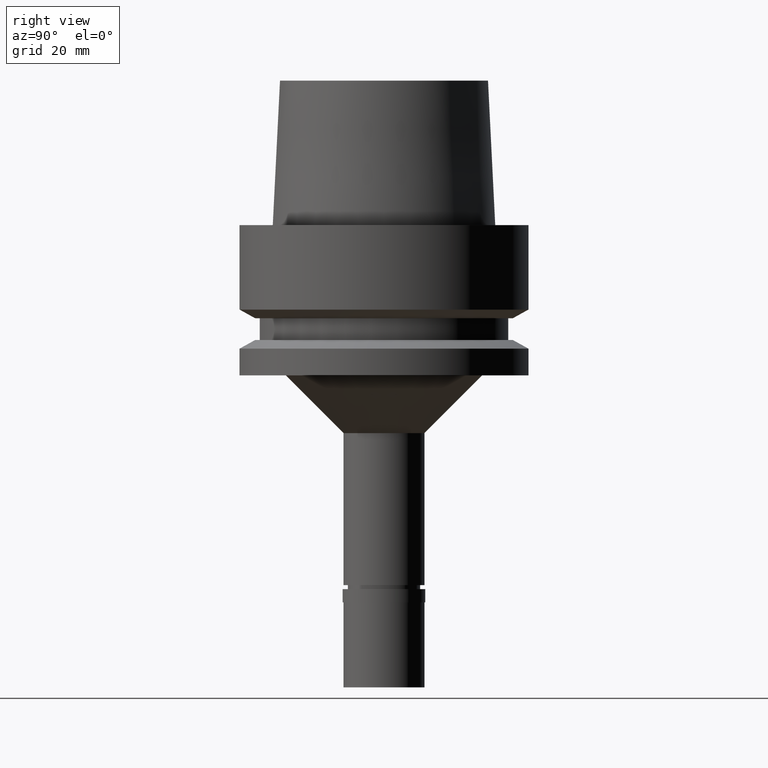
[diagram: clean part render]
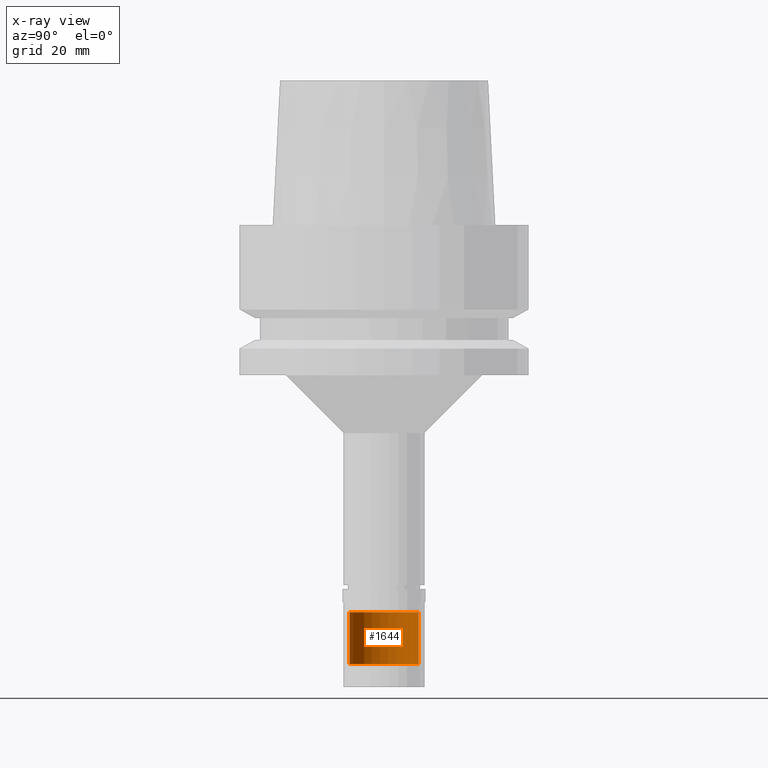
[diagram: x-ray — body ghosted, one internal face saturated and labeled with its STEP entity id]
A machine part, right view, then the same camera in x-ray: the body is ghosted and one INTERNAL B-rep face — a face not visible from any outside direction — is saturated and labeled: STEP entity #1644.
In plain terms, the highlighted cylindrical surface (edge-blend (fillet) strip) has radius 6 mm, axis along (0, 0, 1).
Its self-contained STEP definition (entity closure, byte-faithful):
#122 = DIRECTION ( 'NONE',  ( 0.0000000000000000000, 0.0000000000000000000, 1.000000000000000000 ) ) ;
#140 = DIRECTION ( 'NONE',  ( 0.0000000000000000000, 0.0000000000000000000, -1.000000000000000000 ) ) ;
#218 = CARTESIAN_POINT ( 'NONE',  ( 0.0000000000000000000, 6.000000000000000000, -67.00000000000000000 ) ) ;
#242 = DIRECTION ( 'NONE',  ( 0.0000000000000000000, 0.0000000000000000000, 1.000000000000000000 ) ) ;
#253 = DIRECTION ( 'NONE',  ( 0.0000000000000000000, 1.000000000000000000, 0.0000000000000000000 ) ) ;
#426 = CARTESIAN_POINT ( 'NONE',  ( 0.0000000000000000000, 6.000000000000000000, -76.00000000000000000 ) ) ;
#571 = AXIS2_PLACEMENT_3D ( 'NONE', #973, #122, #956 ) ;
#587 = ORIENTED_EDGE ( 'NONE', *, *, #2076, .F. ) ;
#698 = VERTEX_POINT ( 'NONE', #901 ) ;
#871 = DIRECTION ( 'NONE',  ( 0.0000000000000000000, 0.0000000000000000000, -1.000000000000000000 ) ) ;
#901 = CARTESIAN_POINT ( 'NONE',  ( 0.0000000000000000000, -6.000000000000000000, -76.00000000000000000 ) ) ;
#956 = DIRECTION ( 'NONE',  ( 0.0000000000000000000, 1.000000000000000000, 0.0000000000000000000 ) ) ;
#973 = CARTESIAN_POINT ( 'NONE',  ( 0.0000000000000000000, 0.0000000000000000000, -76.00000000000000000 ) ) ;
#991 = EDGE_CURVE ( 'NONE', #2422, #1553, #1133, .T. ) ;
#1108 = EDGE_CURVE ( 'NONE', #2541, #698, #2397, .T. ) ;
#1115 = CYLINDRICAL_SURFACE ( 'NONE', #2653, 6.000000000000000000 ) ;
#1133 = CIRCLE ( 'NONE', #1843, 6.000000000000000000 ) ;
#1184 = LINE ( 'NONE', #2237, #1447 ) ;
#1319 = EDGE_CURVE ( 'NONE', #1553, #2541, #1426, .T. ) ;
#1426 = LINE ( 'NONE', #218, #1571 ) ;
#1438 = ORIENTED_EDGE ( 'NONE', *, *, #1319, .T. ) ;
#1447 = VECTOR ( 'NONE', #2445, 1000.000000000000000 ) ;
#1553 = VERTEX_POINT ( 'NONE', #2369 ) ;
#1569 = ORIENTED_EDGE ( 'NONE', *, *, #1108, .T. ) ;
#1571 = VECTOR ( 'NONE', #871, 1000.000000000000000 ) ;
#1644 = ADVANCED_FACE ( 'NONE', ( #1695 ), #1115, .T. ) ;
#1648 = EDGE_LOOP ( 'NONE', ( #1569, #587, #2154, #1438 ) ) ;
#1695 = FACE_OUTER_BOUND ( 'NONE', #1648, .T. ) ;
#1800 = DIRECTION ( 'NONE',  ( 0.0000000000000000000, -1.000000000000000000, 0.0000000000000000000 ) ) ;
#1843 = AXIS2_PLACEMENT_3D ( 'NONE', #2407, #140, #1800 ) ;
#1965 = CARTESIAN_POINT ( 'NONE',  ( 0.0000000000000000000, 0.0000000000000000000, -81.04999999999999716 ) ) ;
#2076 = EDGE_CURVE ( 'NONE', #2422, #698, #1184, .T. ) ;
#2114 = CARTESIAN_POINT ( 'NONE',  ( 0.0000000000000000000, -6.000000000000000000, -67.00000000000000000 ) ) ;
#2154 = ORIENTED_EDGE ( 'NONE', *, *, #991, .T. ) ;
#2237 = CARTESIAN_POINT ( 'NONE',  ( 0.0000000000000000000, -6.000000000000000000, -67.00000000000000000 ) ) ;
#2369 = CARTESIAN_POINT ( 'NONE',  ( 0.0000000000000000000, 6.000000000000000000, -67.00000000000000000 ) ) ;
#2397 = CIRCLE ( 'NONE', #571, 6.000000000000000000 ) ;
#2407 = CARTESIAN_POINT ( 'NONE',  ( 0.0000000000000000000, 0.0000000000000000000, -67.00000000000000000 ) ) ;
#2422 = VERTEX_POINT ( 'NONE', #2114 ) ;
#2445 = DIRECTION ( 'NONE',  ( 0.0000000000000000000, 0.0000000000000000000, -1.000000000000000000 ) ) ;
#2541 = VERTEX_POINT ( 'NONE', #426 ) ;
#2653 = AXIS2_PLACEMENT_3D ( 'NONE', #1965, #242, #253 ) ;